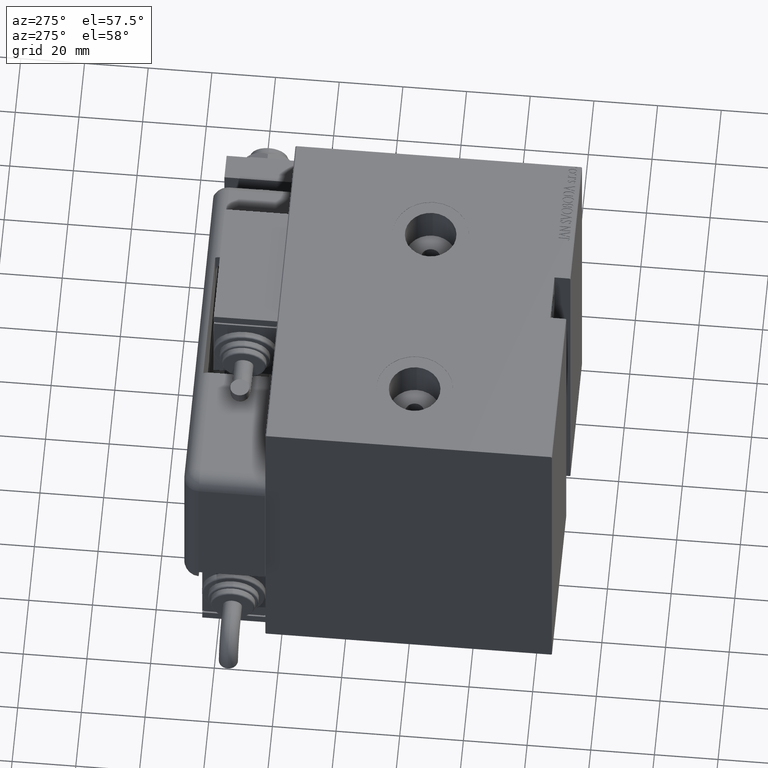
[diagram: clean part render]
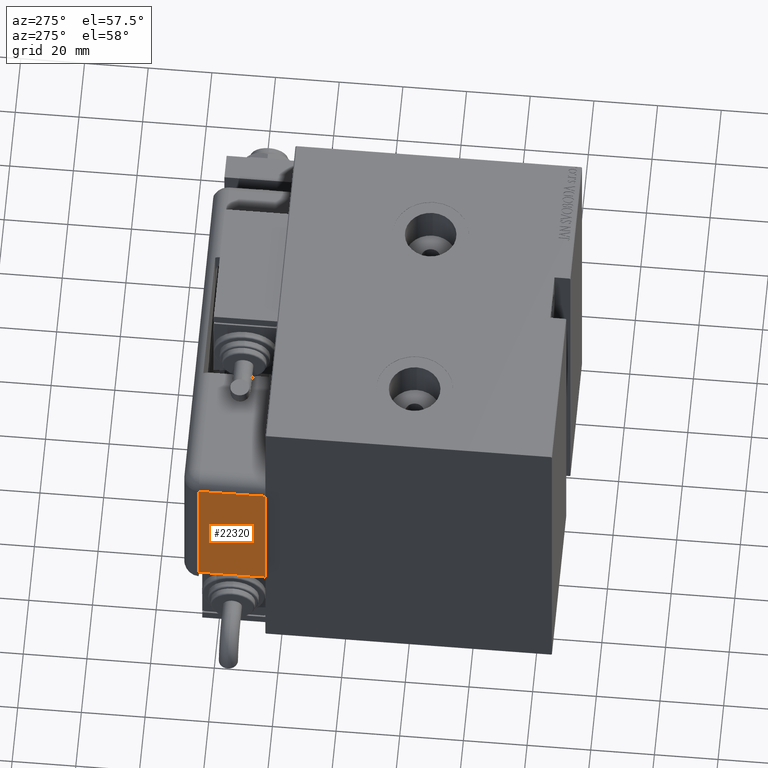
[diagram: same view with one face highlighted and labeled with its STEP entity id]
A machine part, auxiliary view. The second image highlights one B-rep face of the part: STEP entity #22320.
In plain terms, the highlighted planar face has unit normal (-1, -0, -0).
Its self-contained STEP definition (entity closure, byte-faithful):
#394 = CARTESIAN_POINT ( 'NONE',  ( -23.99999999999999645, 20.79999999999998295, 0.000000000000000000 ) ) ;
#491 = VECTOR ( 'NONE', #52121, 1000.000000000000000 ) ;
#1078 = DIRECTION ( 'NONE',  ( 0.000000000000000000, 1.000000000000000000, 0.000000000000000000 ) ) ;
#2961 = EDGE_CURVE ( 'NONE', #30634, #46187, #36484, .T. ) ;
#5681 = CARTESIAN_POINT ( 'NONE',  ( -23.99999999999999289, 1.007682896475360021E-13, 0.000000000000000000 ) ) ;
#6025 = ORIENTED_EDGE ( 'NONE', *, *, #35657, .F. ) ;
#8744 = EDGE_CURVE ( 'NONE', #30634, #21708, #52508, .T. ) ;
#12114 = PLANE ( 'NONE',  #44223 ) ;
#12407 = DIRECTION ( 'NONE',  ( 0.000000000000000000, 0.000000000000000000, -1.000000000000000000 ) ) ;
#12807 = ORIENTED_EDGE ( 'NONE', *, *, #2961, .F. ) ;
#21708 = VERTEX_POINT ( 'NONE', #394 ) ;
#22255 = VECTOR ( 'NONE', #1078, 1000.000000000000000 ) ;
#22320 = ADVANCED_FACE ( 'NONE', ( #30506 ), #12114, .T. ) ;
#23660 = LINE ( 'NONE', #41754, #22255 ) ;
#25145 = CARTESIAN_POINT ( 'NONE',  ( 23.00000000000000000, 0.000000000000000000, 0.000000000000000000 ) ) ;
#27530 = ORIENTED_EDGE ( 'NONE', *, *, #37778, .T. ) ;
#29250 = LINE ( 'NONE', #47347, #491 ) ;
#30506 = FACE_OUTER_BOUND ( 'NONE', #44209, .T. ) ;
#30634 = VERTEX_POINT ( 'NONE', #5681 ) ;
#31745 = CARTESIAN_POINT ( 'NONE',  ( 23.00000000000000000, 20.79999999999998295, 1.734723475976807094E-15 ) ) ;
#35267 = DIRECTION ( 'NONE',  ( -0.000000000000000000, 1.000000000000000000, -0.000000000000000000 ) ) ;
#35657 = EDGE_CURVE ( 'NONE', #46187, #41471, #23660, .T. ) ;
#36484 = LINE ( 'NONE', #58467, #49154 ) ;
#37778 = EDGE_CURVE ( 'NONE', #21708, #41471, #29250, .T. ) ;
#39692 = CARTESIAN_POINT ( 'NONE',  ( 0.000000000000000000, 0.000000000000000000, 0.000000000000000000 ) ) ;
#41471 = VERTEX_POINT ( 'NONE', #31745 ) ;
#41754 = CARTESIAN_POINT ( 'NONE',  ( 23.00000000000000000, 0.000000000000000000, 0.000000000000000000 ) ) ;
#43340 = ORIENTED_EDGE ( 'NONE', *, *, #8744, .T. ) ;
#44209 = EDGE_LOOP ( 'NONE', ( #27530, #6025, #12807, #43340 ) ) ;
#44223 = AXIS2_PLACEMENT_3D ( 'NONE', #39692, #12407, #48009 ) ;
#46187 = VERTEX_POINT ( 'NONE', #25145 ) ;
#47347 = CARTESIAN_POINT ( 'NONE',  ( 23.99999999999999289, 20.79999999999998295, 0.000000000000000000 ) ) ;
#48009 = DIRECTION ( 'NONE',  ( -1.000000000000000000, 0.000000000000000000, -0.000000000000000000 ) ) ;
#49154 = VECTOR ( 'NONE', #54606, 1000.000000000000000 ) ;
#52121 = DIRECTION ( 'NONE',  ( 1.000000000000000000, -0.000000000000000000, -0.000000000000000000 ) ) ;
#52508 = LINE ( 'NONE', #53095, #57766 ) ;
#53095 = CARTESIAN_POINT ( 'NONE',  ( -23.99999999999999645, 20.79999999999998295, 0.000000000000000000 ) ) ;
#54606 = DIRECTION ( 'NONE',  ( 1.000000000000000000, -2.079047426506382950E-15, -0.000000000000000000 ) ) ;
#57766 = VECTOR ( 'NONE', #35267, 1000.000000000000000 ) ;
#58467 = CARTESIAN_POINT ( 'NONE',  ( 28.99999999999999645, -9.421223957302265857E-15, 0.000000000000000000 ) ) ;